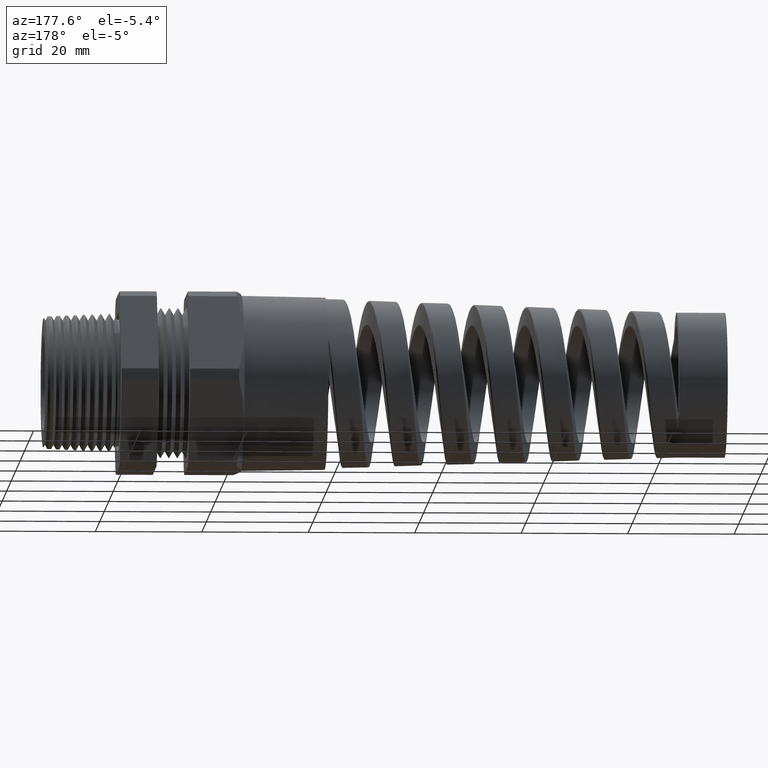
[diagram: clean part render]
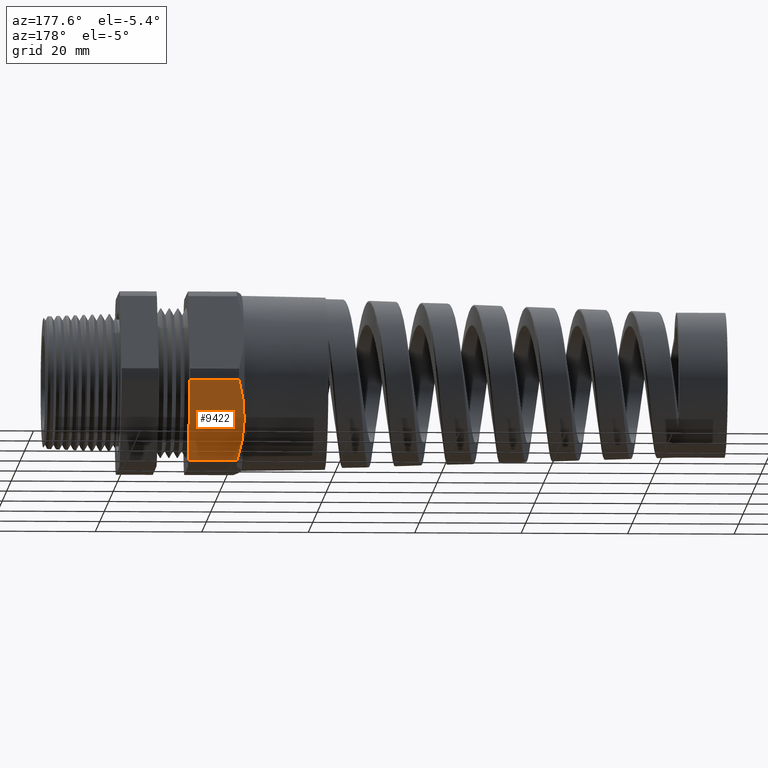
[diagram: same view with one face highlighted and labeled with its STEP entity id]
A machine part, auxiliary view. The second image highlights one B-rep face of the part: STEP entity #9422.
In plain terms, the highlighted planar face has unit normal (0, 0.866, -0.5).
Its self-contained STEP definition (entity closure, byte-faithful):
#803 = VERTEX_POINT ( 'NONE', #13436 ) ;
#968 = EDGE_CURVE ( 'NONE', #803, #9602, #13468, .T. ) ;
#2842 = CARTESIAN_POINT ( 'NONE',  ( -0.8674666790032094000, 0.3989927496919443200, -0.6089242856819405700 ) ) ;
#2843 = CARTESIAN_POINT ( 'NONE',  ( -0.9125000000000002000, 0.5629165124598850500, -0.3250000000000000100 ) ) ;
#2844 = B_SPLINE_CURVE_WITH_KNOTS ( 'NONE', 3,
 ( #2842, #2897, #2896, #2895, #2894, #2893 ),
 .UNSPECIFIED., .F., .F.,
 ( 4, 2, 4 ),
 ( 2.361308568637535600E-007, 0.004201502711991007100, 0.008402769293125151800 ),
 .UNSPECIFIED. ) ;
#2846 = DIRECTION ( 'NONE',  ( 0.0000000000000000000, 0.5000000000000001100, 0.8660254037844386000 ) ) ;
#2847 = DIRECTION ( 'NONE',  ( 0.0000000000000000000, 0.8660254037844386000, -0.5000000000000001100 ) ) ;
#2848 = CARTESIAN_POINT ( 'NONE',  ( -2.992185896283379200, 0.3989927496919443200, -0.6089242856819405700 ) ) ;
#2849 = AXIS2_PLACEMENT_3D ( 'NONE', #2848, #2847, #2846 ) ;
#2850 = PLANE ( 'NONE',  #2849 ) ;
#2851 = FACE_OUTER_BOUND ( 'NONE', #9425, .T. ) ;
#2893 = CARTESIAN_POINT ( 'NONE',  ( -0.9125000000000002000, 0.5629165124598850500, -0.3250000000000000100 ) ) ;
#2894 = CARTESIAN_POINT ( 'NONE',  ( -0.9124999999999999800, 0.5351819839639028200, -0.3730376124790081300 ) ) ;
#2895 = CARTESIAN_POINT ( 'NONE',  ( -0.9083465192945222600, 0.5076765033783842100, -0.4206785023397255900 ) ) ;
#2896 = CARTESIAN_POINT ( 'NONE',  ( -0.8928224553762588200, 0.4530635366525173100, -0.5152709354609955600 ) ) ;
#2897 = CARTESIAN_POINT ( 'NONE',  ( -0.8814868053153364100, 0.4259541240880422300, -0.5622258153860121300 ) ) ;
#2902 = DIRECTION ( 'NONE',  ( 0.0000000000000000000, -0.5000000000000001100, -0.8660254037844386000 ) ) ;
#2903 = VECTOR ( 'NONE', #2902, 39.37007874015748100 ) ;
#2904 = CARTESIAN_POINT ( 'NONE',  ( -0.5058333333333334700, 0.7020415124598851100, -0.08402843139697985200 ) ) ;
#2913 = LINE ( 'NONE', #2904, #2903 ) ;
#2923 = CARTESIAN_POINT ( 'NONE',  ( -0.8674666790032094000, 0.7268402752278256800, -0.04107571431805931400 ) ) ;
#2973 = CARTESIAN_POINT ( 'NONE',  ( -0.8674666790032094000, 0.7268402752278256800, -0.04107571431805931400 ) ) ;
#2974 = CARTESIAN_POINT ( 'NONE',  ( -0.8814205714001794900, 0.7000062718228488000, -0.08755357158595557200 ) ) ;
#2975 = CARTESIAN_POINT ( 'NONE',  ( -0.8927551590989975000, 0.6729577337251738700, -0.1344030138415911700 ) ) ;
#2976 = CARTESIAN_POINT ( 'NONE',  ( -0.9044328033704853700, 0.6319488438240191700, -0.2054324947123890600 ) ) ;
#2977 = CARTESIAN_POINT ( 'NONE',  ( -0.9074375322794260300, 0.6182064968433949000, -0.2292349378980707000 ) ) ;
#2978 = CARTESIAN_POINT ( 'NONE',  ( -0.9114778356147180700, 0.5905605188772369300, -0.2771191763603865200 ) ) ;
#2979 = CARTESIAN_POINT ( 'NONE',  ( -0.9125000000000003100, 0.5766899915409092700, -0.3011436344346789500 ) ) ;
#2980 = CARTESIAN_POINT ( 'NONE',  ( -0.9125000000000002000, 0.5629165124598850500, -0.3250000000000000100 ) ) ;
#2983 = B_SPLINE_CURVE_WITH_KNOTS ( 'NONE', 3,
 ( #2980, #2979, #2978, #2977, #2976, #2975, #2974, #2973 ),
 .UNSPECIFIED., .F., .F.,
 ( 4, 2, 2, 4 ),
 ( 0.008402769293125151800, 0.01048919587064709800, 0.01257562244816904200, 0.01674847560321293300 ),
 .UNSPECIFIED. ) ;
#3037 = CARTESIAN_POINT ( 'NONE',  ( -0.5058333333333336900, 0.3989927496919443200, -0.6089242856819405700 ) ) ;
#3897 = VERTEX_POINT ( 'NONE', #13510 ) ;
#3900 = EDGE_CURVE ( 'NONE', #9440, #3897, #13503, .T. ) ;
#9417 = ORIENTED_EDGE ( 'NONE', *, *, #968, .F. ) ;
#9422 = ADVANCED_FACE ( 'NONE', ( #2851 ), #2850, .T. ) ;
#9423 = EDGE_CURVE ( 'NONE', #803, #9426, #2844, .T. ) ;
#9424 = ORIENTED_EDGE ( 'NONE', *, *, #9423, .T. ) ;
#9425 = EDGE_LOOP ( 'NONE', ( #9417, #9424, #9468, #9452, #9450 ) ) ;
#9426 = VERTEX_POINT ( 'NONE', #2843 ) ;
#9440 = VERTEX_POINT ( 'NONE', #2923 ) ;
#9450 = ORIENTED_EDGE ( 'NONE', *, *, #9453, .T. ) ;
#9452 = ORIENTED_EDGE ( 'NONE', *, *, #3900, .T. ) ;
#9453 = EDGE_CURVE ( 'NONE', #3897, #9602, #2913, .T. ) ;
#9468 = ORIENTED_EDGE ( 'NONE', *, *, #9471, .T. ) ;
#9471 = EDGE_CURVE ( 'NONE', #9426, #9440, #2983, .T. ) ;
#9602 = VERTEX_POINT ( 'NONE', #3037 ) ;
#13436 = CARTESIAN_POINT ( 'NONE',  ( -0.8674666790032094000, 0.3989927496919443200, -0.6089242856819405700 ) ) ;
#13467 = CARTESIAN_POINT ( 'NONE',  ( -2.992185896283379200, 0.3989927496919443200, -0.6089242856819405700 ) ) ;
#13468 = LINE ( 'NONE', #13467, #13529 ) ;
#13500 = DIRECTION ( 'NONE',  ( 1.000000000000000000, 0.0000000000000000000, 0.0000000000000000000 ) ) ;
#13501 = VECTOR ( 'NONE', #13500, 39.37007874015748100 ) ;
#13502 = CARTESIAN_POINT ( 'NONE',  ( -2.992185896283379200, 0.7268402752278256800, -0.04107571431805931400 ) ) ;
#13503 = LINE ( 'NONE', #13502, #13501 ) ;
#13510 = CARTESIAN_POINT ( 'NONE',  ( -0.5058333333333336900, 0.7268402752278256800, -0.04107571431805931400 ) ) ;
#13528 = DIRECTION ( 'NONE',  ( 1.000000000000000000, 0.0000000000000000000, 0.0000000000000000000 ) ) ;
#13529 = VECTOR ( 'NONE', #13528, 39.37007874015748100 ) ;